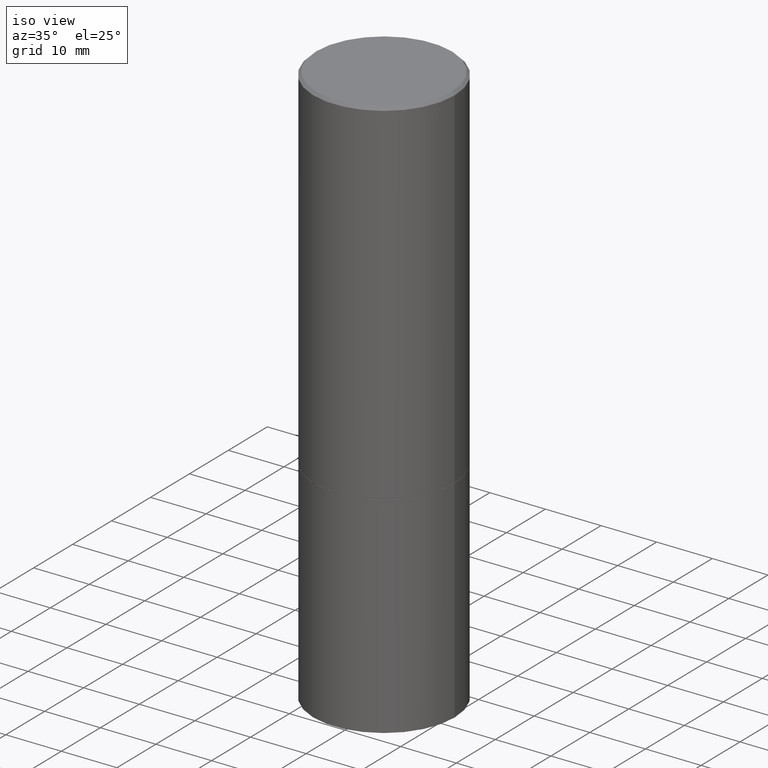
[diagram: clean part render]
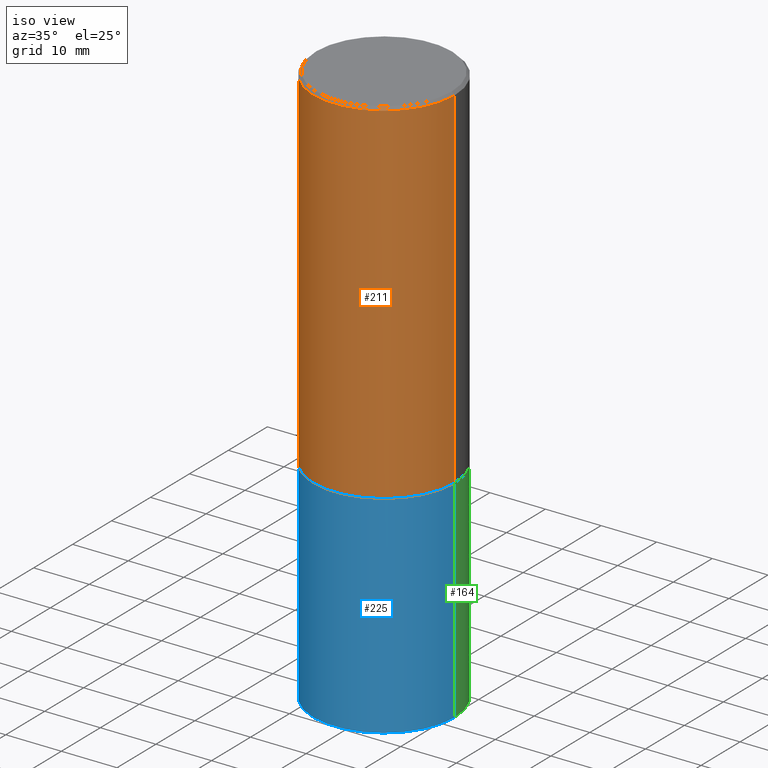
[diagram: same view with three faces highlighted in distinct colors, each labeled with its STEP entity id]
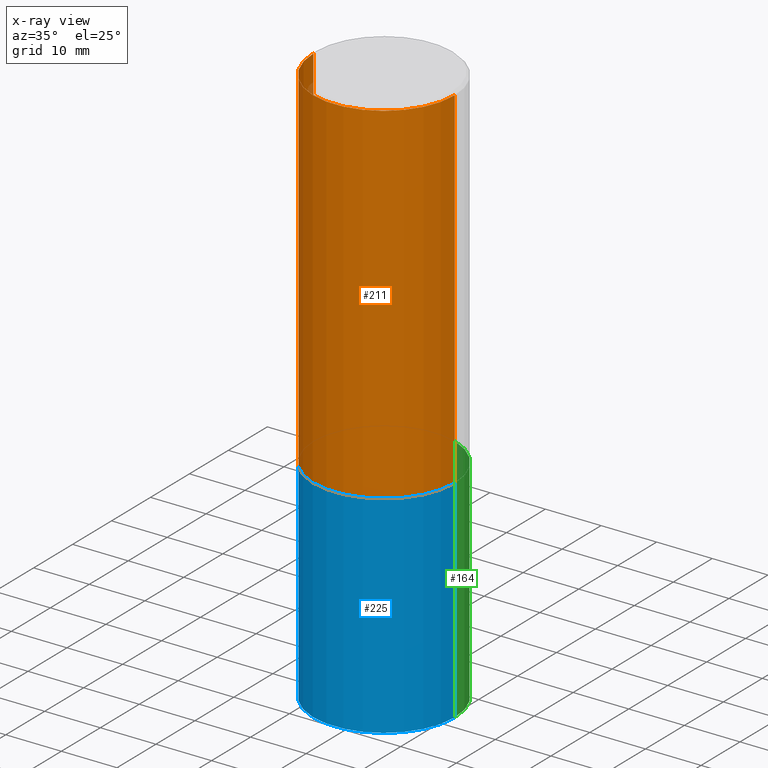
[diagram: x-ray of the same camera — body ghosted, the three highlighted faces saturated]
A machine part, iso view with three faces highlighted in distinct colors.
The next image is the same camera in x-ray (body ghosted, the three faces saturated) — at least one of them is partly hidden behind the body in this view.
Their STEP definitions:

[orange] entity #211 — the highlighted cylindrical surface (partial cylindrical patch) has radius 12.7 mm, axis along (-0, 0, 1).
#21 = DIRECTION ( 'NONE',  ( -2.445468806185136877E-29, 3.491481338843145188E-15, 1.000000000000000000 ) ) ;
#25 = EDGE_CURVE ( 'NONE', #138, #194, #304, .T. ) ;
#41 = EDGE_CURVE ( 'NONE', #282, #163, #127, .T. ) ;
#44 = CIRCLE ( 'NONE', #266, 0.5000000000000000000 ) ;
#50 = EDGE_CURVE ( 'NONE', #194, #163, #328, .T. ) ;
#62 = CARTESIAN_POINT ( 'NONE',  ( 6.111226546656657010E-29, -8.725211865769021935E-15, -2.499000000000000110 ) ) ;
#75 = ORIENTED_EDGE ( 'NONE', *, *, #50, .F. ) ;
#81 = FACE_OUTER_BOUND ( 'NONE', #250, .T. ) ;
#82 = DIRECTION ( 'NONE',  ( 1.000000000000000000, -6.982962677686266711E-15, 0.000000000000000000 ) ) ;
#107 = CARTESIAN_POINT ( 'NONE',  ( -0.4999999999999997224, 3.421651712066268085E-15, -0.02000000000000010797 ) ) ;
#112 = DIRECTION ( 'NONE',  ( -2.445468806185136597E-29, 3.491481338843145583E-15, 1.000000000000000000 ) ) ;
#119 = DIRECTION ( 'NONE',  ( -2.445468806185136597E-29, 3.491481338843145583E-15, 1.000000000000000000 ) ) ;
#127 = LINE ( 'NONE', #280, #134 ) ;
#134 = VECTOR ( 'NONE', #170, 39.37007874015748143 ) ;
#138 = VERTEX_POINT ( 'NONE', #206 ) ;
#147 = CYLINDRICAL_SURFACE ( 'NONE', #260, 0.4999999999999998335 ) ;
#163 = VERTEX_POINT ( 'NONE', #181 ) ;
#168 = ORIENTED_EDGE ( 'NONE', *, *, #41, .T. ) ;
#170 = DIRECTION ( 'NONE',  ( -2.445468806185136877E-29, 3.491481338843145188E-15, 1.000000000000000000 ) ) ;
#181 = CARTESIAN_POINT ( 'NONE',  ( 0.4999999999999997224, -3.500078625662627502E-15, -0.02000000000000010797 ) ) ;
#194 = VERTEX_POINT ( 'NONE', #107 ) ;
#206 = CARTESIAN_POINT ( 'NONE',  ( -0.5000000000000000000, -8.448070674724411945E-16, -2.499000000000000110 ) ) ;
#211 = ADVANCED_FACE ( 'NONE', ( #81 ), #147, .T. ) ;
#213 = ORIENTED_EDGE ( 'NONE', *, *, #25, .F. ) ;
#220 = ORIENTED_EDGE ( 'NONE', *, *, #244, .T. ) ;
#237 = DIRECTION ( 'NONE',  ( 1.000000000000000000, -6.982962677686265133E-15, 0.000000000000000000 ) ) ;
#239 = CARTESIAN_POINT ( 'NONE',  ( 0.5000000000000000000, -1.221669320461215371E-14, -2.499000000000000110 ) ) ;
#244 = EDGE_CURVE ( 'NONE', #138, #282, #44, .T. ) ;
#247 = CARTESIAN_POINT ( 'NONE',  ( -0.4999999999999998335, 3.552713678800499746E-15, -2.459467545127452330E-29 ) ) ;
#250 = EDGE_LOOP ( 'NONE', ( #213, #220, #168, #75 ) ) ;
#253 = CARTESIAN_POINT ( 'NONE',  ( 4.890937612370299433E-31, -6.982962677686328587E-17, -0.02000000000000010797 ) ) ;
#258 = DIRECTION ( 'NONE',  ( 1.000000000000000000, -6.982962677686267499E-15, 4.876176775795936353E-29 ) ) ;
#260 = AXIS2_PLACEMENT_3D ( 'NONE', #264, #112, #258 ) ;
#264 = CARTESIAN_POINT ( 'NONE',  ( 0.000000000000000000, 0.000000000000000000, 0.000000000000000000 ) ) ;
#265 = VECTOR ( 'NONE', #21, 39.37007874015748143 ) ;
#266 = AXIS2_PLACEMENT_3D ( 'NONE', #62, #119, #237 ) ;
#280 = CARTESIAN_POINT ( 'NONE',  ( 0.4999999999999998335, -3.491481338843132566E-15, 2.438088387897967336E-29 ) ) ;
#282 = VERTEX_POINT ( 'NONE', #239 ) ;
#304 = LINE ( 'NONE', #247, #265 ) ;
#328 = CIRCLE ( 'NONE', #345, 0.4999999999999997224 ) ;
#343 = DIRECTION ( 'NONE',  ( -2.445468806185136597E-29, 3.491481338843145583E-15, 1.000000000000000000 ) ) ;
#345 = AXIS2_PLACEMENT_3D ( 'NONE', #253, #343, #82 ) ;

[blue] entity #225 — the highlighted cylindrical surface (partial cylindrical patch) has radius 12.7 mm, axis along (-0, 0, 1).
#7 = DIRECTION ( 'NONE',  ( 1.000000000000000000, -6.982962677686266711E-15, 4.876176775795935793E-29 ) ) ;
#9 = DIRECTION ( 'NONE',  ( 1.000000000000000000, -6.982962677686269077E-15, 0.000000000000000000 ) ) ;
#19 = VECTOR ( 'NONE', #85, 39.37007874015748143 ) ;
#24 = EDGE_LOOP ( 'NONE', ( #356, #362, #359, #283 ) ) ;
#33 = CARTESIAN_POINT ( 'NONE',  ( 0.000000000000000000, 0.000000000000000000, 0.000000000000000000 ) ) ;
#55 = FACE_OUTER_BOUND ( 'NONE', #24, .T. ) ;
#57 = CIRCLE ( 'NONE', #108, 0.5000000000000000000 ) ;
#69 = CARTESIAN_POINT ( 'NONE',  ( 0.5000000000000000000, -1.222018468595099830E-14, -2.500000000000000000 ) ) ;
#79 = CARTESIAN_POINT ( 'NONE',  ( 0.5000000000000000000, -1.745740669421571411E-14, -4.000000000000000000 ) ) ;
#85 = DIRECTION ( 'NONE',  ( -2.445468806185136877E-29, 3.491481338843145188E-15, 1.000000000000000000 ) ) ;
#93 = AXIS2_PLACEMENT_3D ( 'NONE', #33, #144, #7 ) ;
#103 = VERTEX_POINT ( 'NONE', #235 ) ;
#108 = AXIS2_PLACEMENT_3D ( 'NONE', #179, #347, #9 ) ;
#124 = EDGE_CURVE ( 'NONE', #103, #331, #57, .T. ) ;
#128 = EDGE_CURVE ( 'NONE', #255, #103, #146, .T. ) ;
#129 = DIRECTION ( 'NONE',  ( 1.000000000000000000, -6.982962677686266711E-15, 0.000000000000000000 ) ) ;
#144 = DIRECTION ( 'NONE',  ( -2.445468806185136597E-29, 3.491481338843145583E-15, 1.000000000000000000 ) ) ;
#145 = EDGE_CURVE ( 'NONE', #156, #331, #341, .T. ) ;
#146 = LINE ( 'NONE', #204, #19 ) ;
#154 = CARTESIAN_POINT ( 'NONE',  ( 9.781875224740546387E-29, -1.396592535537258233E-14, -4.000000000000000000 ) ) ;
#156 = VERTEX_POINT ( 'NONE', #79 ) ;
#179 = CARTESIAN_POINT ( 'NONE',  ( 6.113672015462842613E-29, -8.728703347107864943E-15, -2.500000000000000000 ) ) ;
#185 = CARTESIAN_POINT ( 'NONE',  ( -0.5000000000000000000, -7.794600672439723496E-15, -4.000000000000000000 ) ) ;
#187 = DIRECTION ( 'NONE',  ( -2.445468806185136597E-29, 3.491481338843145583E-15, 1.000000000000000000 ) ) ;
#204 = CARTESIAN_POINT ( 'NONE',  ( -0.5000000000000000000, 3.552713678800500929E-15, -2.459467545127452891E-29 ) ) ;
#209 = VECTOR ( 'NONE', #344, 39.37007874015748143 ) ;
#225 = ADVANCED_FACE ( 'NONE', ( #55 ), #289, .T. ) ;
#235 = CARTESIAN_POINT ( 'NONE',  ( -0.5000000000000000000, -7.794600672439723496E-15, -2.500000000000000000 ) ) ;
#255 = VERTEX_POINT ( 'NONE', #185 ) ;
#283 = ORIENTED_EDGE ( 'NONE', *, *, #124, .F. ) ;
#289 = CYLINDRICAL_SURFACE ( 'NONE', #93, 0.5000000000000000000 ) ;
#294 = CIRCLE ( 'NONE', #340, 0.5000000000000000000 ) ;
#319 = CARTESIAN_POINT ( 'NONE',  ( 0.5000000000000000000, -3.491481338843133355E-15, 2.438088387897967896E-29 ) ) ;
#331 = VERTEX_POINT ( 'NONE', #69 ) ;
#340 = AXIS2_PLACEMENT_3D ( 'NONE', #154, #187, #129 ) ;
#341 = LINE ( 'NONE', #319, #209 ) ;
#344 = DIRECTION ( 'NONE',  ( -2.445468806185136877E-29, 3.491481338843145188E-15, 1.000000000000000000 ) ) ;
#347 = DIRECTION ( 'NONE',  ( -2.445468806185136597E-29, 3.491481338843145583E-15, 1.000000000000000000 ) ) ;
#356 = ORIENTED_EDGE ( 'NONE', *, *, #128, .F. ) ;
#357 = EDGE_CURVE ( 'NONE', #255, #156, #294, .T. ) ;
#359 = ORIENTED_EDGE ( 'NONE', *, *, #145, .T. ) ;
#362 = ORIENTED_EDGE ( 'NONE', *, *, #357, .T. ) ;

[green] entity #164 — the highlighted cylindrical surface (partial cylindrical patch) has radius 12.7 mm, axis along (-0, 0, 1).
#12 = CARTESIAN_POINT ( 'NONE',  ( 6.113672015462842613E-29, -8.728703347107864943E-15, -2.500000000000000000 ) ) ;
#19 = VECTOR ( 'NONE', #85, 39.37007874015748143 ) ;
#47 = ORIENTED_EDGE ( 'NONE', *, *, #311, .T. ) ;
#69 = CARTESIAN_POINT ( 'NONE',  ( 0.5000000000000000000, -1.222018468595099830E-14, -2.500000000000000000 ) ) ;
#79 = CARTESIAN_POINT ( 'NONE',  ( 0.5000000000000000000, -1.745740669421571411E-14, -4.000000000000000000 ) ) ;
#85 = DIRECTION ( 'NONE',  ( -2.445468806185136877E-29, 3.491481338843145188E-15, 1.000000000000000000 ) ) ;
#88 = DIRECTION ( 'NONE',  ( 1.000000000000000000, -6.982962677686266711E-15, 0.000000000000000000 ) ) ;
#103 = VERTEX_POINT ( 'NONE', #235 ) ;
#114 = DIRECTION ( 'NONE',  ( 1.000000000000000000, -6.982962677686266711E-15, 4.876176775795935793E-29 ) ) ;
#126 = AXIS2_PLACEMENT_3D ( 'NONE', #348, #210, #88 ) ;
#128 = EDGE_CURVE ( 'NONE', #255, #103, #146, .T. ) ;
#145 = EDGE_CURVE ( 'NONE', #156, #331, #341, .T. ) ;
#146 = LINE ( 'NONE', #204, #19 ) ;
#152 = CIRCLE ( 'NONE', #200, 0.5000000000000000000 ) ;
#156 = VERTEX_POINT ( 'NONE', #79 ) ;
#158 = EDGE_LOOP ( 'NONE', ( #47, #273, #285, #354 ) ) ;
#164 = ADVANCED_FACE ( 'NONE', ( #178 ), #177, .T. ) ;
#177 = CYLINDRICAL_SURFACE ( 'NONE', #346, 0.5000000000000000000 ) ;
#178 = FACE_OUTER_BOUND ( 'NONE', #158, .T. ) ;
#185 = CARTESIAN_POINT ( 'NONE',  ( -0.5000000000000000000, -7.794600672439723496E-15, -4.000000000000000000 ) ) ;
#200 = AXIS2_PLACEMENT_3D ( 'NONE', #12, #322, #270 ) ;
#204 = CARTESIAN_POINT ( 'NONE',  ( -0.5000000000000000000, 3.552713678800500929E-15, -2.459467545127452891E-29 ) ) ;
#209 = VECTOR ( 'NONE', #344, 39.37007874015748143 ) ;
#210 = DIRECTION ( 'NONE',  ( -2.445468806185136597E-29, 3.491481338843145583E-15, 1.000000000000000000 ) ) ;
#233 = CARTESIAN_POINT ( 'NONE',  ( 0.000000000000000000, 0.000000000000000000, 0.000000000000000000 ) ) ;
#235 = CARTESIAN_POINT ( 'NONE',  ( -0.5000000000000000000, -7.794600672439723496E-15, -2.500000000000000000 ) ) ;
#255 = VERTEX_POINT ( 'NONE', #185 ) ;
#270 = DIRECTION ( 'NONE',  ( 1.000000000000000000, -6.982962677686269077E-15, 0.000000000000000000 ) ) ;
#273 = ORIENTED_EDGE ( 'NONE', *, *, #128, .T. ) ;
#285 = ORIENTED_EDGE ( 'NONE', *, *, #365, .F. ) ;
#301 = CIRCLE ( 'NONE', #126, 0.5000000000000000000 ) ;
#311 = EDGE_CURVE ( 'NONE', #156, #255, #301, .T. ) ;
#319 = CARTESIAN_POINT ( 'NONE',  ( 0.5000000000000000000, -3.491481338843133355E-15, 2.438088387897967896E-29 ) ) ;
#322 = DIRECTION ( 'NONE',  ( -2.445468806185136597E-29, 3.491481338843145583E-15, 1.000000000000000000 ) ) ;
#331 = VERTEX_POINT ( 'NONE', #69 ) ;
#339 = DIRECTION ( 'NONE',  ( -2.445468806185136597E-29, 3.491481338843145583E-15, 1.000000000000000000 ) ) ;
#341 = LINE ( 'NONE', #319, #209 ) ;
#344 = DIRECTION ( 'NONE',  ( -2.445468806185136877E-29, 3.491481338843145188E-15, 1.000000000000000000 ) ) ;
#346 = AXIS2_PLACEMENT_3D ( 'NONE', #233, #339, #114 ) ;
#348 = CARTESIAN_POINT ( 'NONE',  ( 9.781875224740546387E-29, -1.396592535537258233E-14, -4.000000000000000000 ) ) ;
#354 = ORIENTED_EDGE ( 'NONE', *, *, #145, .F. ) ;
#365 = EDGE_CURVE ( 'NONE', #331, #103, #152, .T. ) ;